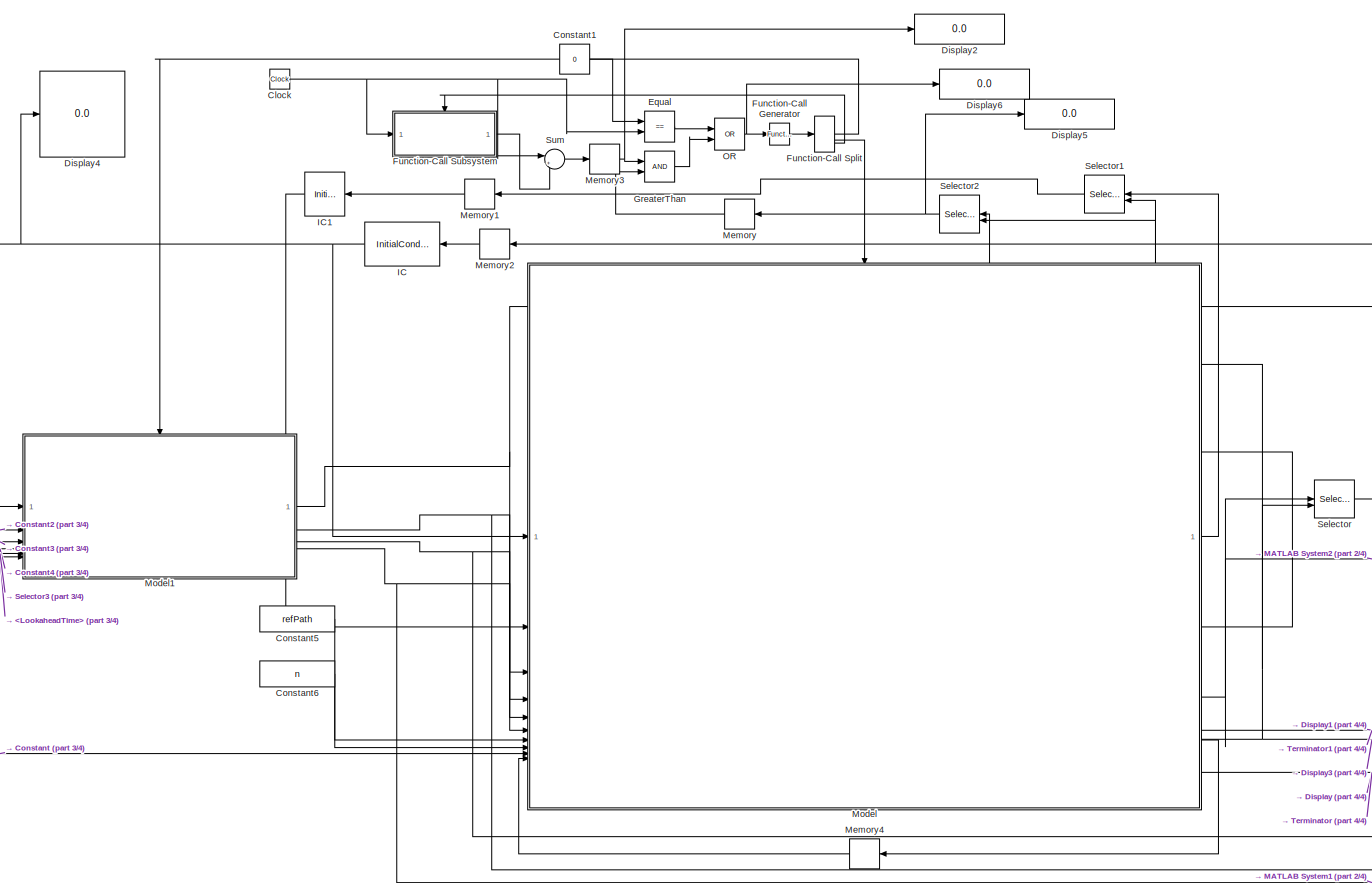
[diagram: root canvas - part 1/4, center side, full height]
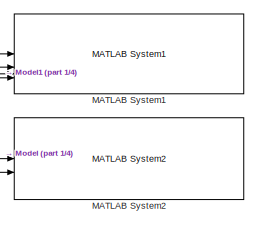
[diagram: root canvas - part 2/4, middle right region]
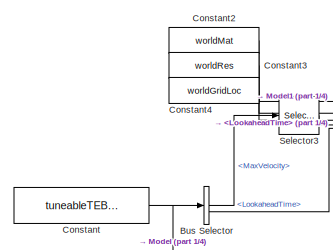
[diagram: root canvas - part 3/4, middle left region]
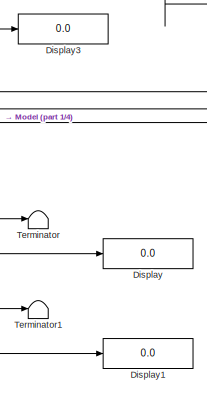
[diagram: root canvas - part 4/4, bottom right region]
MODEL slx_d843bd5b3866
KIND model
CONFIG AbsTol = auto
CONFIG EnableMultiTasking = off
CONFIG FixedStep = auto
CONFIG InitFcn = localPlanSetup
CONFIG MaxStep = auto
CONFIG MinStep = auto
CONFIG RelTol = 1e-3
CONFIG SampleTimeConstraint = Unconstrained
CONFIG SolverName = FixedStepDiscrete
CONFIG StartTime = 0.0
CONFIG StopTime = 30
BLOCK [BusSelector] Bus Selector
  OutputSignals = MaxVelocity,LookaheadTime
BLOCK [Clock] Clock
BLOCK [Constant] Constant
  OutDataTypeStr = Bus: teb_bus
  Value = tuneableTEBParamsCpp
BLOCK [Constant] Constant1
  Value = 0
BLOCK [Constant] Constant2
  Value = worldMat
  VectorParams1D = off
BLOCK [Constant] Constant3
  Value = worldRes
BLOCK [Constant] Constant4
  Value = worldGridLoc
  VectorParams1D = off
BLOCK [Constant] Constant5
  Value = refPath
  VectorParams1D = off
BLOCK [Constant] Constant6
  Value = n
BLOCK [Display] Display
  Decimation = 1
BLOCK [Display] Display1
  Decimation = 1
BLOCK [Display] Display2
  Decimation = 1
BLOCK [Display] Display3
  Decimation = 1
BLOCK [Display] Display4
  Decimation = 1
BLOCK [Display] Display5
  Decimation = 1
BLOCK [Display] Display6
  Decimation = 1
BLOCK [RelationalOperator] Equal
  InputSameDT = off
  Operator = ==
  OutDataTypeStr = boolean
  RndMeth = Simplest
BLOCK [Reference] Function-Call Generator  REF=simulink/Ports &
Subsystems/Function-Call
Generator
  SourceBlock = simulink/Ports &\nSubsystems/Function-Call\nGenerator
  SourceType = Function-Call Generator
BLOCK [FunctionCallSplit] Function-Call Split
  IconShape = distinctive
  NumOutputPorts = 3
  OutputPortLayout = default
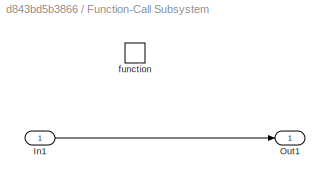
BLOCK [SubSystem] Function-Call Subsystem
  TreatAsAtomicUnit = on
BLOCK [Inport] Function-Call Subsystem/In1
BLOCK [Outport] Function-Call Subsystem/Out1
BLOCK [TriggerPort] Function-Call Subsystem/function
  StatesWhenEnabling = held
  TriggerType = function-call
  VariantControl = (inherit)
BLOCK [RelationalOperator] GreaterThan
  InputSameDT = off
  OutDataTypeStr = boolean
  RndMeth = Simplest
BLOCK [InitialCondition] IC
  NameLocation = top
  Value = refPath(1,:) + [10 10 0]
BLOCK [InitialCondition] IC1
  NameLocation = top
  Value = [0 0]
BLOCK [Reference] MATLAB System1  REF=roshelperlib/MATLAB System1  (lib defined in slx_3328ea0e13a5)
  SourceBlock = roshelperlib/MATLAB System1
  SourceType = exampleHelperMapVisualizerSys
BLOCK [Reference] MATLAB System2  REF=roshelperlib/MATLAB System2  (lib defined in slx_3328ea0e13a5)
  SourceBlock = roshelperlib/MATLAB System2
  SourceType = exampleHelperPathVisualizerSys
BLOCK [Memory] Memory
  NameLocation = top
BLOCK [Memory] Memory1
  NameLocation = top
BLOCK [Memory] Memory2
  NameLocation = top
BLOCK [Memory] Memory3
BLOCK [Memory] Memory4
BLOCK [ModelReference] Model
  ModelNameDialog = planLocalPath.slx
  ModelReferenceVersion = 2.0
  TriggerPortName = function
  TriggerPortStatesWhenEnabling = held
  TriggerPortTriggerType = function-call
BLOCK [ModelReference] Model1
  ModelNameDialog = extractLocalMap.slx
  ModelReferenceVersion = 2.0
  TriggerPortName = function
  TriggerPortStatesWhenEnabling = held
  TriggerPortTriggerType = function-call
BLOCK [Logic] OR
  AllPortsSameDT = off
  IconShape = distinctive
  Operator = OR
  OutDataTypeStr = boolean
BLOCK [Selector] Selector
  IndexOptions = Starting index (port),Select all
  Indices = [1 3],1
  InputPortWidth = 3
  NumberOfDimensions = 2
  OutputSizes = 1,1
BLOCK [Selector] Selector1
  IndexOptions = Starting index (port),Select all
  Indices = [1 3],1
  InputPortWidth = 3
  NameLocation = top
  NumberOfDimensions = 2
  OutputSizes = 1,1
BLOCK [Selector] Selector2
  IndexOptions = Starting index (port),Select all
  Indices = [1 3],1
  InputPortWidth = 3
  NameLocation = top
  NumberOfDimensions = 2
  OutputSizes = 1,1
BLOCK [Selector] Selector3
  IndexOptions = Index vector (dialog)
  Indices = 1
  InputPortWidth = 2
  OutputSizes = 1
BLOCK [Sum] Sum
  Inputs = |+-
BLOCK [Terminator] Terminator
BLOCK [Terminator] Terminator1
LINE Bus Selector:1 -> Selector3:1
LINE Bus Selector:2 -> Model1:6
NET Clock:1 -> Equal:2, Function-Call Subsystem:1, Sum:1
LINE Constant1:1 -> Equal:1
LINE Constant2:1 -> Model1:2
LINE Constant3:1 -> Model1:3
LINE Constant4:1 -> Model1:4
LINE Constant5:1 -> Model:7
LINE Constant6:1 -> Model:8
NET Constant:1 -> Bus Selector:1, Model:9
LINE Equal:1 -> OR:1
LINE Function-Call Generator:1 -> Function-Call Split:1
LINE Function-Call Split:1 -> Model1:trigger
LINE Function-Call Split:2 -> Model:trigger
LINE Function-Call Split:3 -> Function-Call Subsystem:trigger
LINE Function-Call Subsystem/In1:1 -> Function-Call Subsystem/Out1:1
LINE Function-Call Subsystem:1 -> Sum:2
LINE GreaterThan:1 -> OR:2
LINE IC1:1 -> Model:2
NET IC:1 -> Display4:1, Model1:1, Model:1
LINE Memory1:1 -> IC1:1
LINE Memory2:1 -> IC:1
NET Memory3:1 -> Display2:1, GreaterThan:1
LINE Memory4:1 -> Model:10
LINE Memory:1 -> GreaterThan:2
NET Model1:1 -> MATLAB System1:1, Model:3
NET Model1:2 -> MATLAB System1:2, Model:4
NET Model1:3 -> MATLAB System1:3, Model:5
NET Model1:4 -> MATLAB System1:4, Model:6
LINE Model:1 -> Selector1:1
LINE Model:2 -> Selector2:1
NET Model:3 -> MATLAB System2:1, Selector:1
NET Model:4 -> Display3:1, MATLAB System2:2, Selector1:2, Selector2:2, Selector:2
NET Model:5 -> Display:1, Terminator:1
NET Model:6 -> Display1:1, Terminator1:1
LINE Model:7 -> Memory4:1
NET OR:1 -> Display6:1, Function-Call Generator:1
LINE Selector1:1 -> Memory1:1
NET Selector2:1 -> Display5:1, Memory:1
LINE Selector3:1 -> Model1:5
LINE Selector:1 -> Memory2:1
LINE Sum:1 -> Memory3:1
note: NET lines group one-source signal fan-out (src -> all destinations, sorted); 1:1 wires keep LINE
